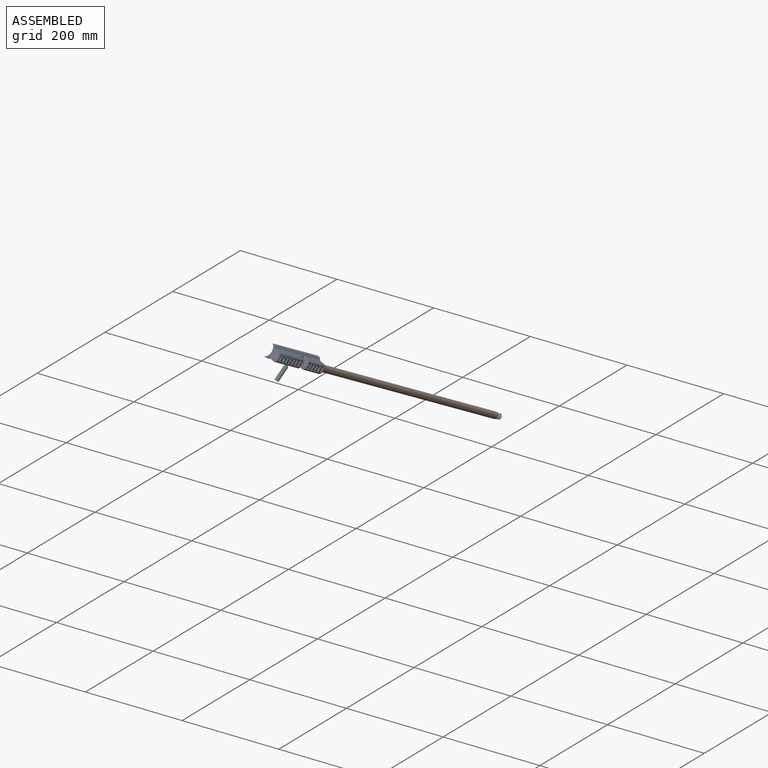
[diagram: assembled view]
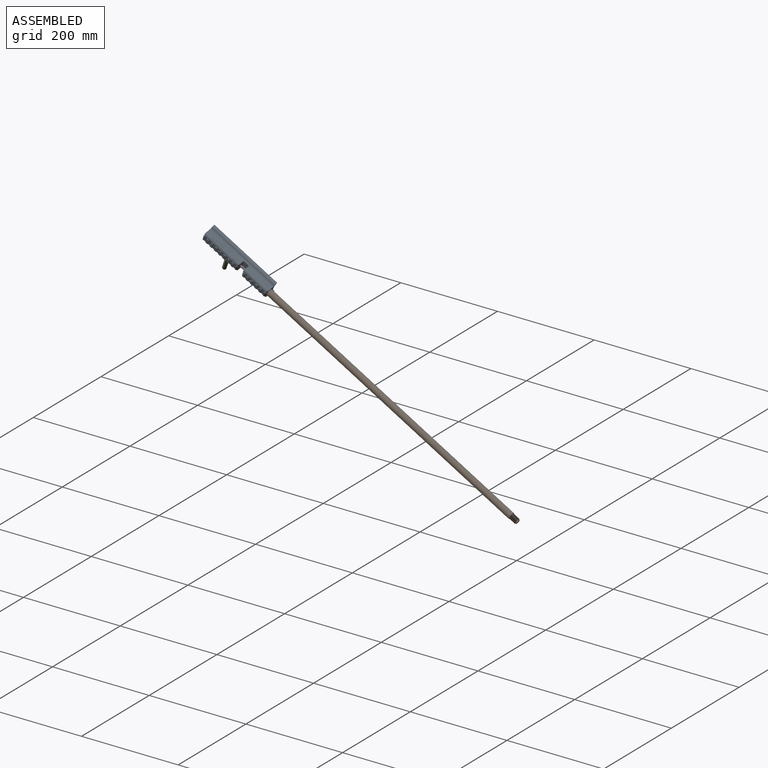
[diagram: assembled view, second angle]
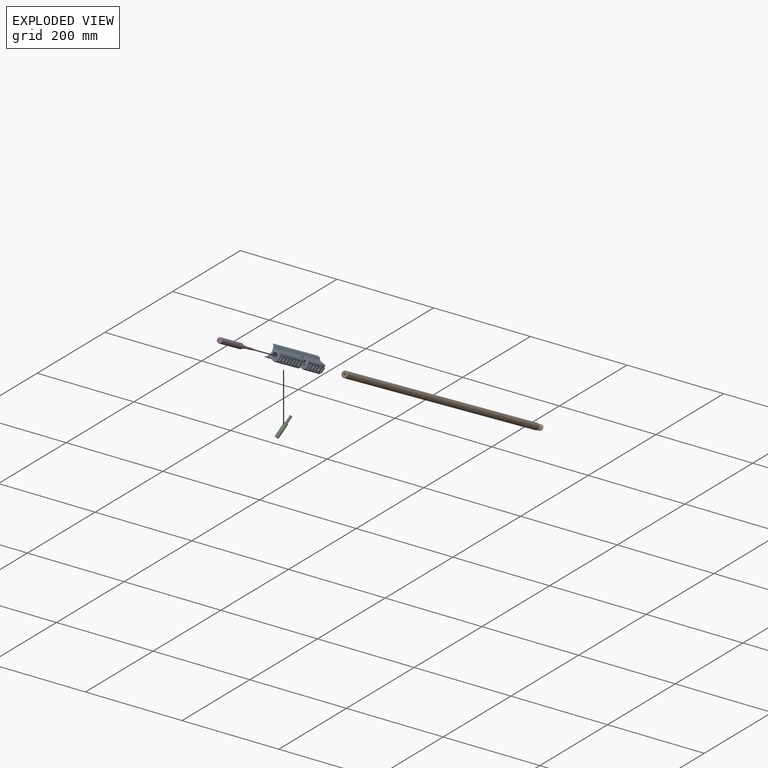
[diagram: exploded view]
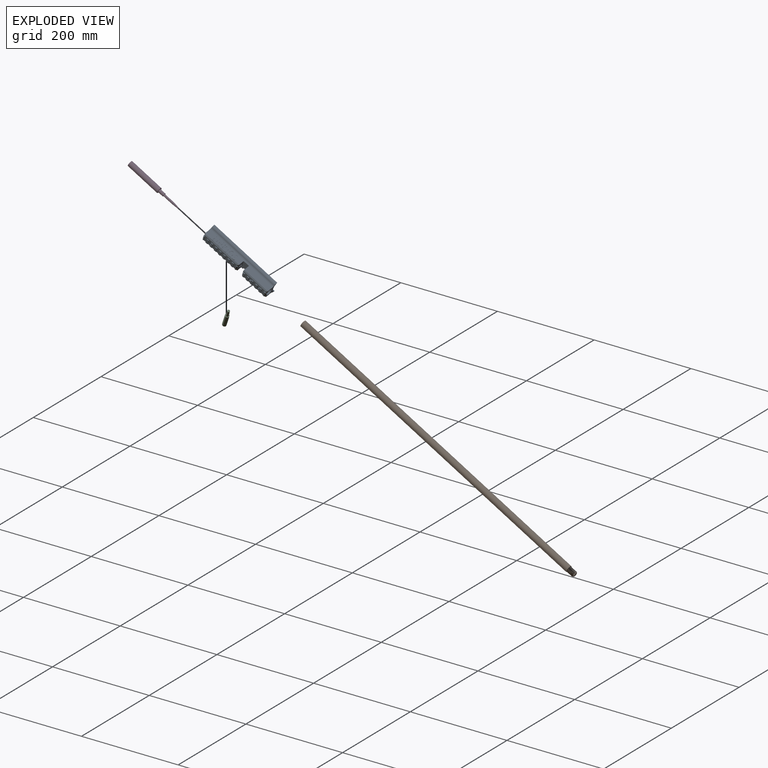
[diagram: exploded view, second angle]
ASSEMBLY  parts=4 mates=3
PART A: 224 faces, bbox 150x27x26.4 mm
  f0: plane 11x5mm, normal (0,0,1), area 55mm2, adj f8,f16,f220,f223
  f1: plane 11x5mm, normal (0,0,1), area 55mm2, adj f9,f17,f218,f221
  f2: plane 11x5mm, normal (0,0,1), area 55mm2, adj f10,f18,f216,f219
  f3: plane 11x5mm, normal (0,0,1), area 55mm2, adj f11,f19,f214,f217
  f4: plane 11x5mm, normal (0,0,1), area 55mm2, adj f12,f20,f210,f215
  f5: plane 11x5mm, normal (0,0,1), area 55mm2, adj f13,f21,f199,f212
  f6: plane 11x1.25mm, normal (0,0,1), area 13.8mm2, adj f14,f22,f98,f213
  f7: plane 11x1.25mm, normal (0,0,1), area 13.8mm2, adj f15,f23,f97,f211
  f8: plane 5x2mm, normal (0,0.92,-0.4), area 10.9mm2, adj f0,f51,f220,f223
  f9: plane 5x2mm, normal (0,0.92,-0.4), area 10.9mm2, adj f1,f51,f218,f221
  f10: plane 5x2mm, normal (0,0.92,-0.4), area 10.9mm2, adj f2,f51,f216,f219
  f11: plane 5x2mm, normal (0,0.92,-0.4), area 10.9mm2, adj f3,f51,f214,f217
  f12: plane 5x2mm, normal (0,0.92,-0.4), area 10.9mm2, adj f4,f51,f210,f215
  f13: plane 5x2mm, normal (0,0.92,-0.4), area 10.9mm2, adj f5,f51,f199,f212
  f14: plane 4x3.25mm, normal (0,0.92,-0.4), area 7.1mm2, adj f6,f43,f51,f95,f98,f213
  f15: plane 4x3.25mm, normal (0,0.92,-0.4), area 7.1mm2, adj f7,f51,f66,f93,f97,f211
  f16: plane 5x2mm, normal (0,-0.92,-0.4), area 10.9mm2, adj f0,f51,f220,f223
  f17: plane 5x2mm, normal (0,-0.92,-0.4), area 10.9mm2, adj f1,f51,f218,f221
  f18: plane 5x2mm, normal (0,-0.92,-0.4), area 10.9mm2, adj f2,f51,f216,f219
  f19: plane 5x2mm, normal (0,-0.92,-0.4), area 10.9mm2, adj f3,f51,f214,f217
  f20: plane 5x2mm, normal (0,-0.92,-0.4), area 10.9mm2, adj f4,f51,f210,f215
  f21: plane 5x2mm, normal (0,-0.92,-0.4), area 10.9mm2, adj f5,f51,f199,f212
  f22: plane 4x3.25mm, normal (0,-0.92,-0.4), area 7.1mm2, adj f6,f43,f51,f90,f98,f213
  f23: plane 4x3.25mm, normal (0,-0.92,-0.4), area 7.1mm2, adj f7,f51,f66,f91,f97,f211
  f24: plane 11x5mm, normal (0,0,1), area 54mm2, adj f29,f34,f194,f196,f197,f209
  f25: plane 11x5mm, normal (0,0,1), area 55mm2, adj f30,f35,f195,f204
  f26: plane 11x5mm, normal (0,0,1), area 54mm2, adj f31,f36,f39,f202,f203,f206
  f27: plane 11x3.5mm, normal (0,0,1), area 38.5mm2, adj f32,f37,f84,f207
  f28: plane 11x5mm, normal (0,0,1), area 55mm2, adj f33,f38,f201,f205
  f29: plane 5x2mm, normal (0,0.92,-0.4), area 10.9mm2, adj f24,f58,f196,f209
  f30: plane 5x2mm, normal (0,0.92,-0.4), area 10.9mm2, adj f25,f58,f195,f204
  f31: plane 5x2mm, normal (0,0.92,-0.4), area 10.9mm2, adj f26,f58,f202,f206
  f32: plane 5.5x4mm, normal (0,0.92,-0.4), area 12mm2, adj f27,f53,f58,f84,f86,f207
  f33: plane 5x2mm, normal (0,0.92,-0.4), area 10.9mm2, adj f28,f58,f201,f205
  f34: plane 5x2mm, normal (0,-0.92,-0.4), area 10.9mm2, adj f24,f58,f197,f209
  f35: plane 5x2mm, normal (0,-0.92,-0.4), area 10.9mm2, adj f25,f58,f195,f204
  f36: plane 5x2mm, normal (0,-0.92,-0.4), area 10.9mm2, adj f26,f58,f203,f206
  f37: plane 5.5x4mm, normal (0,-0.92,-0.4), area 12mm2, adj f27,f53,f58,f84,f89,f207
  f38: plane 5x2mm, normal (0,-0.92,-0.4), area 10.9mm2, adj f28,f58,f201,f205
  f39: cylinder r=2.5mm len=5mm, axis (0,0,1), area 33.9mm2, adj f26,f58,f59,f202,f203
  f40: plane 69.07x11.85mm, normal (0,1,0), area 543.5mm2, adj f43,f64,f94,f101,f102,f103,f104,f105
  f41: plane 10.34x4.02mm, normal (0,1,0), area 20mm2, adj f64,f143,f158,f159,f160
  f42: plane 85.37x11.83mm, normal (0,1,0), area 818.6mm2, adj f53,f64,f66,f67,f68,f85,f94,f99
  f43: plane 27x24.41mm, normal (-1,0,0), area 251mm2, adj f14,f22,f40,f44,f45,f54,f55,f61
  f44: cylinder r=5.5mm len=70mm, axis (-1,0,0), area 1929.9mm2, adj f43,f65,f69,f70,f71,f72,f73,f74
  f45: plane 150x11.76mm, normal (0,-1,0), area 1375.5mm2, adj f43,f53,f63,f66,f67,f68,f70,f71
  f46: cylinder r=3.25mm len=11.5mm, axis (1,0,0), area 234.8mm2, adj f66,f69
  f47: plane 11x5mm, normal (0,0,1), area 48.9mm2, adj f48,f50,f65,f198,f200,f222
  f48: plane 5x2mm, normal (0,0.92,-0.4), area 10.9mm2, adj f47,f51,f198,f222
  f49: plane 10.32x4.05mm, normal (0,1,0), area 20.2mm2, adj f64,f145,f146,f147,f148
  f50: plane 5x2mm, normal (0,-0.92,-0.4), area 10.9mm2, adj f47,f51,f200,f222
  f51: plane 77.5x14.5mm, normal (0,0,1), area 763.4mm2, adj f8,f9,f10,f11,f12,f13,f14,f15
  f52: plane 11x3.5mm, normal (0,0,1), area 38.5mm2, adj f56,f57,f96,f208
  f53: plane 27x24.41mm, normal (1,0,0), area 213.3mm2, adj f32,f37,f42,f45,f54,f55,f59,f61
  f54: plane 150x2.47mm, normal (0,-1,0), area 370.3mm2, adj f43,f53,f61,f83
  f55: plane 150x2.47mm, normal (0,1,0), area 370.3mm2, adj f43,f53,f62,f83
  f56: plane 5.5x2mm, normal (0,0.92,-0.4), area 9.8mm2, adj f52,f58,f96,f208
  f57: plane 5.5x4mm, normal (0,-0.92,-0.4), area 12mm2, adj f52,f58,f67,f87,f96,f208
  f58: plane 54x14.5mm, normal (0,0,1), area 472.3mm2, adj f29,f30,f31,f32,f33,f34,f35,f36
  f59: cylinder r=6.5mm len=56mm, axis (1,0,0), area 2227mm2, adj f39,f53,f60,f67,f193,f194
  f60: plane 6.93x1mm, normal (1,0,0), area 4.7mm2, adj f59,f68
  f61: cylinder r=5mm len=150mm, axis (1,0,0), area 718.6mm2, adj f43,f53,f54,f63
  f62: cylinder r=5mm len=150mm, axis (-1,0,0), area 718.6mm2, adj f43,f53,f55,f64
  f63: cylinder r=5mm len=150mm, axis (1,0,0), area 718.6mm2, adj f43,f45,f53,f61
  f64: cylinder r=5mm len=150mm, axis (-1,0,0), area 718.6mm2, adj f40,f41,f42,f43,f49,f53,f62,f100
  f65: cylinder r=2.5mm len=5.1mm, axis (0,0,1), area 56.6mm2, adj f44,f47,f51,f198,f200
  f66: plane 18.5x13.5mm, normal (1,0,0), area 196.3mm2, adj f15,f23,f42,f45,f46,f68,f91,f93
  f67: plane 18.5x13.5mm, normal (-1,0,0), area 109.6mm2, adj f42,f45,f57,f58,f59,f68,f85,f87
  f68: plane 18.5x12.5mm, normal (0,0,1), area 231.2mm2, adj f42,f45,f60,f66,f67
  f69: plane 11x11mm, normal (-1,0,0), area 61.9mm2, adj f44,f46
  f70: plane 6x2.2mm, normal (1,0,0), area 11.5mm2, adj f44,f45,f74,f75,f76
  f71: plane 7.5x6mm, normal (-1,0,0), area 32.6mm2, adj f44,f45,f72,f75,f76
  f72: plane 40x4.46mm, normal (0,0,-1), area 178.3mm2, adj f44,f45,f71,f73
  f73: plane 5.3x4.46mm, normal (1,0,0), area 21mm2, adj f44,f45,f72,f74
  f74: plane 25x4.4mm, normal (0,0,1), area 110.1mm2, adj f44,f45,f70,f73
  f75: plane 15x0.36mm, normal (0,-1,0), area 5.4mm2, adj f44,f70,f71,f76
  f76: plane 15x6mm, normal (0,0,1), area 90mm2, adj f45,f70,f71,f75
  f77: plane 43.89x2.71mm, normal (0,0,-1), area 112mm2, adj f44,f79,f80,f82
  f78: plane 43.89x2.71mm, normal (0,0,-1), area 112mm2, adj f44,f80,f81,f82
  f79: plane 35x4.8mm, normal (0,1,0), area 168mm2, adj f77,f80,f82,f83
  f80: cylinder r=5mm len=10mm, axis (0,0,-1), area 67.5mm2, adj f44,f77,f78,f79,f81,f83
  f81: plane 35x4.8mm, normal (0,-1,0), area 168mm2, adj f78,f80,f82,f83
  f82: cylinder r=5mm len=10mm, axis (0,0,-1), area 67.5mm2, adj f44,f77,f78,f79,f81,f83
  f83: cylinder r=16mm len=150mm, axis (-1,0,0), area 4365.1mm2, adj f43,f53,f54,f55,f79,f80,f81,f82
  f84: plane 11x2mm, normal (0.71,0,0.71), area 28.6mm2, adj f27,f32,f37,f53
  f85: plane 56x2mm, normal (0,0.71,0.71), area 155.6mm2, adj f42,f58,f67,f86
  f86: plane 5.5x2mm, normal (0.71,0,0.71), area 11.5mm2, adj f32,f53,f58,f85
  f87: plane 5.5x2mm, normal (-0.71,0,0.71), area 11.5mm2, adj f57,f58,f67,f88
  f88: plane 56x2mm, normal (0,-0.71,0.71), area 152.7mm2, adj f45,f58,f87,f89
  f89: plane 5.5x2mm, normal (0.71,0,0.71), area 11.5mm2, adj f37,f53,f58,f88
  f90: plane 5.5x2mm, normal (-0.71,0,0.71), area 11.5mm2, adj f22,f43,f51,f92
  f91: plane 5.5x2mm, normal (0.71,0,0.71), area 11.5mm2, adj f23,f51,f66,f92
  f92: plane 81.5x2mm, normal (0,-0.71,0.71), area 224.9mm2, adj f45,f51,f90,f91
  f93: plane 5.5x2mm, normal (0.71,0,0.71), area 11.5mm2, adj f15,f51,f66,f94
  f94: plane 81.5x2mm, normal (0,0.71,0.71), area 224.9mm2, adj f40,f42,f51,f93,f95,f113
  f95: plane 5.5x2mm, normal (-0.71,0,0.71), area 11.5mm2, adj f14,f43,f51,f94
  f96: plane 11x2mm, normal (-0.71,0,0.71), area 28.6mm2, adj f52,f56,f57,f67
  f97: plane 11x2mm, normal (0.71,0,0.71), area 28.6mm2, adj f7,f15,f23,f66
  f98: plane 11x2mm, normal (-0.71,0,0.71), area 28.6mm2, adj f6,f14,f22,f43
  f99: extruded ~1.21x0.38mm, area 0.4mm2, adj f42,f100,f125,f126
  f100: plane 3.49x0.3mm, normal (0,0,-1), area 1mm2, adj f64,f99,f101,f126
  f101: extruded ~1.53x0.7mm, area 0.5mm2, adj f40,f100,f102,f126
  f102: extruded ~2.4x1.12mm, area 0.8mm2, adj f40,f101,f103,f126
  f103: extruded ~1.95x0.69mm, area 0.6mm2, adj f40,f102,f104,f126
  f104: extruded ~2.52x1.4mm, area 0.9mm2, adj f40,f103,f105,f126
  f105: extruded ~1.62x0.71mm, area 0.5mm2, adj f40,f104,f106,f126
  f106: extruded ~0.75x0.71mm, area 0.3mm2, adj f40,f105,f107,f126
  f107: extruded ~0.99x0.3mm, area 0.3mm2, adj f40,f106,f108,f126
  f108: extruded ~1.28x0.61mm, area 0.4mm2, adj f40,f107,f109,f126
  f109: extruded ~1.68x0.46mm, area 0.5mm2, adj f40,f108,f110,f126
  f110: extruded ~2.81x0.61mm, area 0.9mm2, adj f40,f109,f111,f126
  f111: plane 1.18x0.42mm, normal (-0.94,0,-0.34), area 0.4mm2, adj f40,f110,f112,f126
  f112: extruded ~2.11x0.57mm, area 0.7mm2, adj f40,f111,f113,f126
  f113: plane 2x0.3mm, normal (0,0,1), area 0.6mm2, adj f94,f112,f114,f126
  f114: extruded ~1.77x0.73mm, area 0.6mm2, adj f42,f113,f115,f126
  f115: extruded ~2.15x1.01mm, area 0.7mm2, adj f42,f114,f116,f126
  f116: extruded ~2.08x0.7mm, area 0.7mm2, adj f42,f115,f117,f126
  f117: extruded ~2.32x1.38mm, area 0.8mm2, adj f42,f116,f118,f126
  f118: extruded ~1.73x0.74mm, area 0.6mm2, adj f42,f117,f119,f126
  f119: extruded ~0.81x0.71mm, area 0.3mm2, adj f42,f118,f120,f126
  f120: extruded ~0.99x0.3mm, area 0.3mm2, adj f42,f119,f121,f126
  f121: extruded ~1.43x0.69mm, area 0.5mm2, adj f42,f120,f122,f126
  f122: extruded ~2.04x0.51mm, area 0.6mm2, adj f42,f121,f123,f126
  f123: extruded ~1.67x0.3mm, area 0.5mm2, adj f42,f122,f124,f126
  f124: extruded ~1.56x0.48mm, area 0.5mm2, adj f42,f123,f125,f126
  f125: plane 1.31x0.3mm, normal (1,0,0), area 0.4mm2, adj f42,f99,f124,f126
  f126: plane 11.85x7.34mm, normal (0,1,0), area 31mm2, adj f99,f100,f101,f102,f103,f104,f105,f106
  f127: extruded ~1.86x0.98mm, area 0.6mm2, adj f40,f128,f141,f142
  f128: extruded ~3.14x1.2mm, area 1mm2, adj f40,f127,f129,f142
  f129: plane 7.55x0.3mm, normal (-1,0,0), area 2.3mm2, adj f40,f128,f130,f142
  f130: plane 1.36x0.3mm, normal (0,0,1), area 0.4mm2, adj f40,f129,f131,f142
  f131: plane 7.59x0.3mm, normal (1,0,0), area 2.3mm2, adj f40,f130,f132,f142
  f132: extruded ~2.25x0.8mm, area 0.7mm2, adj f40,f131,f133,f142
  f133: extruded ~2.27x0.79mm, area 0.7mm2, adj f40,f132,f134,f142
  f134: extruded ~2.34x0.78mm, area 0.8mm2, adj f40,f133,f135,f142
  f135: extruded ~2.24x0.8mm, area 0.7mm2, adj f40,f134,f136,f142
  f136: plane 7.61x0.3mm, normal (-1,0,0), area 2.3mm2, adj f40,f135,f137,f142
  f137: plane 1.36x0.3mm, normal (0,0,1), area 0.4mm2, adj f40,f136,f138,f142
  f138: plane 7.51x0.3mm, normal (1,0,0), area 2.3mm2, adj f40,f137,f139,f142
  f139: extruded ~3.16x1.15mm, area 1mm2, adj f40,f138,f140,f142
  f140: extruded ~1.82x0.99mm, area 0.6mm2, adj f40,f139,f141,f142
  f141: plane 2.9x0.3mm, normal (0,0,-1), area 0.9mm2, adj f64,f127,f140,f142
  f142: plane 11.72x8.93mm, normal (0,1,0), area 35.4mm2, adj f127,f128,f129,f130,f131,f132,f133,f134
  f143: plane 10.34x3.96mm, normal (0.93,0,-0.36), area 3.3mm2, adj f41,f144,f160,f161
  f144: plane 1.09x0.3mm, normal (0,0,-1), area 0.3mm2, adj f64,f143,f145,f161
  f145: plane 10.32x3.99mm, normal (-0.93,0,-0.36), area 3.3mm2, adj f49,f144,f146,f161
  f146: plane 0.3x0.06mm, normal (0,0,-1), area 0mm2, adj f49,f145,f147,f161
  f147: extruded ~2.81x0.3mm, area 0.8mm2, adj f49,f146,f148,f161
  f148: plane 7.51x0.3mm, normal (1,0,0), area 2.3mm2, adj f49,f147,f149,f161
  f149: plane 1.36x0.3mm, normal (0,0,-1), area 0.4mm2, adj f64,f148,f150,f161
  f150: plane 11.66x0.3mm, normal (-1,0,0), area 3.5mm2, adj f40,f149,f151,f161
  f151: plane 2.03x0.3mm, normal (0,0,1), area 0.6mm2, adj f40,f150,f152,f161
  f152: plane 9.62x3.72mm, normal (0.93,0,0.36), area 3.1mm2, adj f40,f151,f153,f161
  f153: plane 0.3x0.06mm, normal (0,0,1), area 0mm2, adj f40,f152,f154,f161
  f154: plane 9.62x3.69mm, normal (-0.93,0,0.36), area 3.1mm2, adj f40,f153,f155,f161
  f155: plane 2.04x0.3mm, normal (0,0,1), area 0.6mm2, adj f40,f154,f156,f161
  f156: plane 11.66x0.3mm, normal (1,0,0), area 3.5mm2, adj f40,f155,f157,f161
  f157: plane 1.25x0.3mm, normal (0,0,-1), area 0.4mm2, adj f64,f156,f158,f161
  f158: plane 7.42x0.3mm, normal (-1,0,0), area 2.2mm2, adj f41,f157,f159,f161
  f159: extruded ~2.92x0.3mm, area 0.9mm2, adj f41,f158,f160,f161
  f160: plane 0.3x0.06mm, normal (0,0,-1), area 0mm2, adj f41,f143,f159,f161
  f161: plane 11.66x11.55mm, normal (0,1,0), area 58.2mm2, adj f143,f144,f145,f146,f147,f148,f149,f150
  f162: plane 1.22x0.3mm, normal (0,0,1), area 0.4mm2, adj f163,f176,f177,f178
  f163: plane 4.74x0.3mm, normal (-1,0,0), area 1.4mm2, adj f162,f164,f177,f178
  f164: plane 1.52x0.3mm, normal (0,0,-1), area 0.5mm2, adj f163,f165,f177,f178
  f165: extruded ~2.36x0.57mm, area 0.7mm2, adj f164,f166,f177,f178
  f166: extruded ~1.72x0.76mm, area 0.6mm2, adj f165,f167,f177,f178
  f167: extruded ~1.87x0.81mm, area 0.6mm2, adj f166,f176,f177,f178
  f168: plane 4.59x0.3mm, normal (-1,0,0), area 1.4mm2, adj f40,f169,f175,f177
  f169: plane 1.37x0.3mm, normal (0,0,-1), area 0.4mm2, adj f40,f168,f170,f177
  f170: extruded ~3.46x0.95mm, area 1.1mm2, adj f40,f169,f171,f177
  f171: extruded ~2.72x1.21mm, area 0.9mm2, adj f40,f170,f172,f177
  f172: extruded ~4.37x3.4mm, area 1.9mm2, adj f40,f171,f173,f177
  f173: plane 3.02x0.3mm, normal (0,0,1), area 0.9mm2, adj f40,f172,f174,f177
  f174: plane 11.66x0.3mm, normal (1,0,0), area 3.5mm2, adj f40,f173,f175,f177
  f175: plane 1.36x0.3mm, normal (0,0,-1), area 0.4mm2, adj f64,f168,f174,f177
  f176: extruded ~2.61x0.58mm, area 0.8mm2, adj f162,f167,f177,f178
  f177: plane 11.66x7.39mm, normal (0,1,0), area 33.5mm2, adj f162,f163,f164,f165,f166,f167,f168,f169
  f178: plane 4.74x4.64mm, normal (0,1,0), area 19.5mm2, adj f162,f163,f164,f165,f166,f167,f176
  f179: plane 11.66x0.3mm, normal (1,0,0), area 3.5mm2, adj f40,f180,f182,f183
  f180: plane 1.36x0.3mm, normal (0,0,-1), area 0.4mm2, adj f64,f179,f181,f183
  f181: plane 11.66x0.3mm, normal (-1,0,0), area 3.5mm2, adj f40,f180,f182,f183
  f182: plane 1.36x0.3mm, normal (0,0,1), area 0.4mm2, adj f40,f179,f181,f183
  f183: plane 11.66x1.36mm, normal (0,1,0), area 15.8mm2, adj f179,f180,f181,f182
  f184: plane 10.46x0.3mm, normal (1,0,0), area 3.1mm2, adj f40,f185,f191,f192
  f185: plane 1.36x0.3mm, normal (0,0,-1), area 0.4mm2, adj f64,f184,f186,f192
  f186: plane 10.46x0.3mm, normal (-1,0,0), area 3.1mm2, adj f40,f185,f187,f192
  f187: plane 3.69x0.3mm, normal (0,0,-1), area 1.1mm2, adj f40,f186,f188,f192
  f188: plane 1.2x0.3mm, normal (-1,0,0), area 0.4mm2, adj f40,f187,f189,f192
  f189: plane 8.74x0.3mm, normal (0,0,1), area 2.6mm2, adj f40,f188,f190,f192
  f190: plane 1.2x0.3mm, normal (1,0,0), area 0.4mm2, adj f40,f189,f191,f192
  f191: plane 3.69x0.3mm, normal (0,0,-1), area 1.1mm2, adj f40,f184,f190,f192
  f192: plane 11.66x8.74mm, normal (0,1,0), area 24.7mm2, adj f184,f185,f186,f187,f188,f189,f190,f191
  f193: cylinder r=2.5mm len=5mm, axis (0,0,1), area 44.7mm2, adj f59,f83
  f194: cylinder r=2.5mm len=5mm, axis (0,0,1), area 33.9mm2, adj f24,f58,f59,f196,f197
  f195: plane 11x2mm, normal (-1,0,0), area 20.3mm2, adj f25,f30,f35,f58
  f196: plane 4x2mm, normal (1,0,0), area 7.1mm2, adj f24,f29,f58,f194
  f197: plane 4x2mm, normal (1,0,0), area 7.1mm2, adj f24,f34,f58,f194
  f198: plane 3.12x2mm, normal (-1,0,0), area 5.4mm2, adj f47,f48,f51,f65
  f199: plane 11x2mm, normal (1,0,0), area 20.3mm2, adj f5,f13,f21,f51
  f200: plane 3.12x2mm, normal (-1,0,0), area 5.4mm2, adj f47,f50,f51,f65
  f201: plane 11x2mm, normal (1,0,0), area 20.3mm2, adj f28,f33,f38,f58
  f202: plane 4x2mm, normal (-1,0,0), area 7.1mm2, adj f26,f31,f39,f58
  f203: plane 4x2mm, normal (-1,0,0), area 7.1mm2, adj f26,f36,f39,f58
  f204: plane 11x2mm, normal (1,0,0), area 20.3mm2, adj f25,f30,f35,f58
  f205: plane 11x2mm, normal (-1,0,0), area 20.3mm2, adj f28,f33,f38,f58
  f206: plane 11x2mm, normal (1,0,0), area 20.3mm2, adj f26,f31,f36,f58
  f207: plane 11x2mm, normal (-1,0,0), area 20.3mm2, adj f27,f32,f37,f58
  f208: plane 11x2mm, normal (1,0,0), area 20.3mm2, adj f52,f56,f57,f58
  f209: plane 11x2mm, normal (-1,0,0), area 20.3mm2, adj f24,f29,f34,f58
  f210: plane 11x2mm, normal (1,0,0), area 20.3mm2, adj f4,f12,f20,f51
  f211: plane 11x2mm, normal (-1,0,0), area 20.3mm2, adj f7,f15,f23,f51
  f212: plane 11x2mm, normal (-1,0,0), area 20.3mm2, adj f5,f13,f21,f51
  f213: plane 11x2mm, normal (1,0,0), area 20.3mm2, adj f6,f14,f22,f51
  f214: plane 11x2mm, normal (1,0,0), area 20.3mm2, adj f3,f11,f19,f51
  f215: plane 11x2mm, normal (-1,0,0), area 20.3mm2, adj f4,f12,f20,f51
  f216: plane 11x2mm, normal (1,0,0), area 20.3mm2, adj f2,f10,f18,f51
  f217: plane 11x2mm, normal (-1,0,0), area 20.3mm2, adj f3,f11,f19,f51
  f218: plane 11x2mm, normal (1,0,0), area 20.3mm2, adj f1,f9,f17,f51
  f219: plane 11x2mm, normal (-1,0,0), area 20.3mm2, adj f2,f10,f18,f51
  f220: plane 11x2mm, normal (1,0,0), area 20.3mm2, adj f0,f8,f16,f51
  f221: plane 11x2mm, normal (-1,0,0), area 20.3mm2, adj f1,f9,f17,f51
  f222: plane 11x2mm, normal (1,0,0), area 20.3mm2, adj f47,f48,f50,f51
  f223: plane 11x2mm, normal (-1,0,0), area 20.3mm2, adj f0,f8,f16,f51
PART B: 17 faces, bbox 15x650.9x15 mm
  f0: bspline ~15x13.21mm, area 454.7mm2, adj f1,f11,f13
  f1: bspline ~15.63x13.21mm, area 477.4mm2, adj f0,f11,f12,f13
  f2: cylinder r=6.5mm len=634.8mm, axis (0,1,0), area 25906.3mm2, adj f5,f9,f16
  f3: plane 8.9x8.9mm, normal (0,-1,0), area 37.9mm2, adj f14,f15
  f4: cylinder r=2.28mm len=649.5mm, axis (0,1,0), area 9282.1mm2, adj f5,f6,f7,f8,f15
  f5: cylinder r=2.5mm len=6mm, axis (0,0,-1), area 82.9mm2, adj f2,f4,f7,f8
  f6: plane 12.6x12.6mm, normal (0,1,0), area 108.4mm2, adj f4,f16
  f7: plane 2.28x0.28mm, normal (0,0,-1), area 0.4mm2, adj f4,f5
  f8: plane 2.28x0.28mm, normal (0,0,-1), area 0.4mm2, adj f4,f5
  f9: plane 13x13mm, normal (0,-1,0), area 28.9mm2, adj f2,f10
  f10: cylinder r=5.75mm len=11.5mm, axis (0,-1,0), area 23.9mm2, adj f9,f11,f12
  f11: plane 1.27x1.11mm, normal (0,0,1), area 0.7mm2, adj f0,f1,f10,f12
  f12: bspline ~13.28x11.5mm, area 1.3mm2, adj f1,f10,f11
  f13: plane 11.33x11.32mm, normal (0,-1,0), area 22.3mm2, adj f0,f1,f14
  f14: cylinder r=4.45mm len=8.9mm, axis (0,-1,0), area 36.3mm2, adj f3,f13
  f15: cone r=2.28mm half-angle=45deg, axis (0,-1,0), area 11.2mm2, adj f3,f4
  f16: torus R=6.3mm, axis (0,-1,0), area 12.7mm2, adj f2,f6
PART C: 7 faces, bbox 8x45x8 mm
  f0: cylinder r=2.5mm len=15mm, axis (0,1,0), area 235.6mm2, adj f1,f3
  f1: plane 5x5mm, normal (0,-1,0), area 19.6mm2, adj f0
  f2: cylinder r=4mm len=30mm, axis (0,1,0), area 754mm2, adj f3,f4
  f3: plane 8x8mm, normal (0,-1,0), area 30.6mm2, adj f0,f2
  f4: plane 8x8mm, normal (0,1,0), area 30.6mm2, adj f2,f5
  f5: cylinder r=2.5mm len=25mm, axis (0,1,0), area 392.7mm2, adj f4,f6
  f6: plane 5x5mm, normal (0,1,0), area 19.6mm2, adj f5
PART D: 11 faces, bbox 11x116.5x11 mm
  f0: plane 11x11mm, normal (0,-1,0), area 61.9mm2, adj f2,f8
  f1: plane 11x11mm, normal (0,1,0), area 95mm2, adj f8
  f2: cylinder r=3.25mm len=11.5mm, axis (0,1,0), area 234.8mm2, adj f0,f3
  f3: plane 6.5x6.5mm, normal (0,-1,0), area 19mm2, adj f2,f5
  f4: plane 0.1x0.1mm, normal (0,-1,0), area 0mm2, adj f10
  f5: cylinder r=2.12mm len=20mm, axis (0,1,0), area 267mm2, adj f3,f9
  f6: cylinder r=2.5mm len=7mm, axis (-1,0,0), area 105.3mm2, adj f7,f8
  f7: plane 5x5mm, normal (-1,0,0), area 19.6mm2, adj f6
  f8: cylinder r=5.5mm len=70mm, axis (0,1,0), area 2398.8mm2, adj f0,f1,f6
  f9: cone r=1.12mm half-angle=3.8deg, axis (0,1,0), area 145.6mm2, adj f5,f10
  f10: torus R=0.05mm, axis (0,-1,0), area 8.3mm2, adj f4,f9
PLACE A rot(axis=(0.55,0.78,0.29),115deg) t=(103.83,22.71,-40.47)mm
PLACE B rot(axis=(0.81,0.14,0.56),155.8deg) t=(95.69,106.6,-82.83)mm
PLACE C rot(axis=(-0.68,0.48,-0.55),152.2deg) t=(79.6,50.97,-98.46)mm
PLACE D rot(axis=(0.81,0.14,0.56),155.8deg) t=(94.49,24.55,-37.39)mm
MATE fastened D.f6 <-> C.f0  axis (-0.36,-0.45,-0.82) through (95.7,71.15,-61.6)mm
MATE slider D.f8 <-> A.f44  axis (-0.01,-0.87,0.48) through (95.39,85.78,-71.3)mm
MATE slider B.f2 <-> A.f44  axis (-0.01,-0.87,0.48) through (95.7,106.78,-82.93)mm
